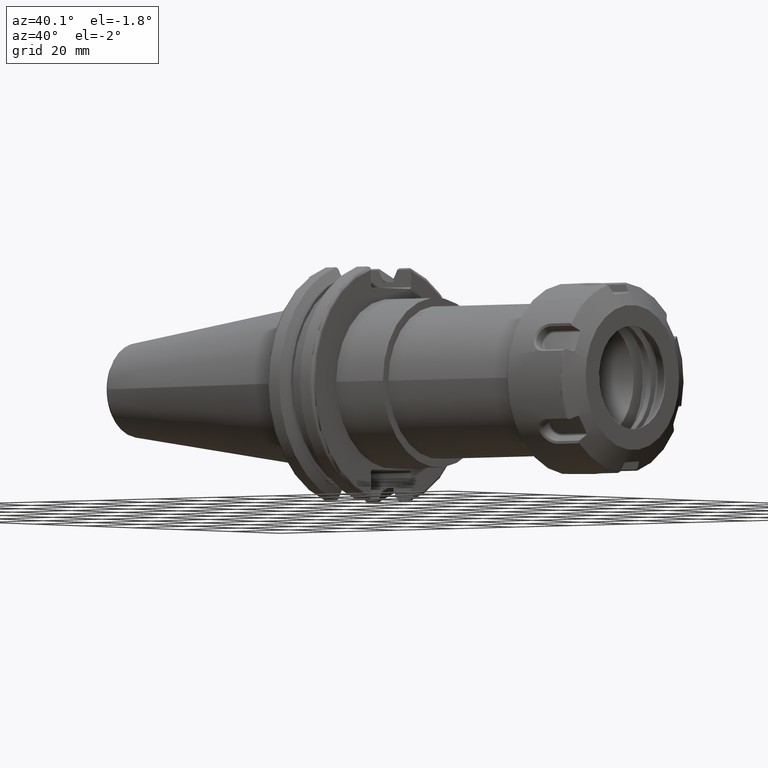
[diagram: clean part render]
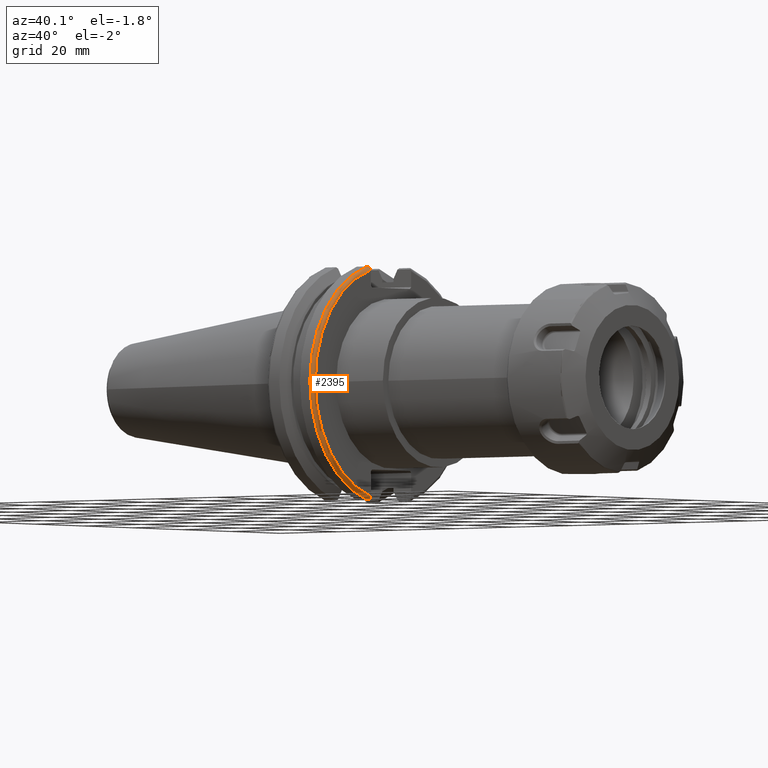
[diagram: same view with one face highlighted and labeled with its STEP entity id]
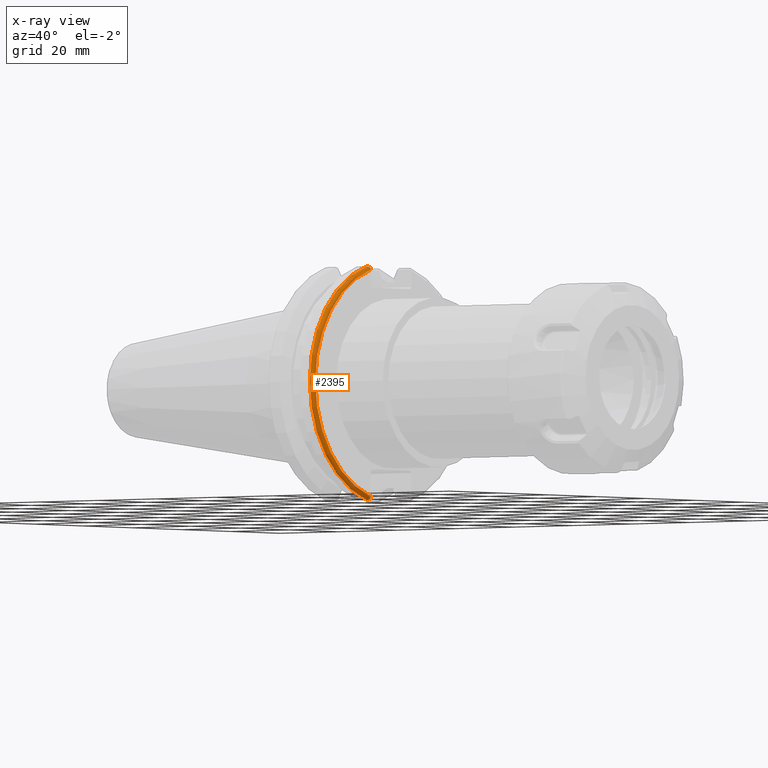
[diagram: x-ray of the same camera — body ghosted, the highlighted face saturated]
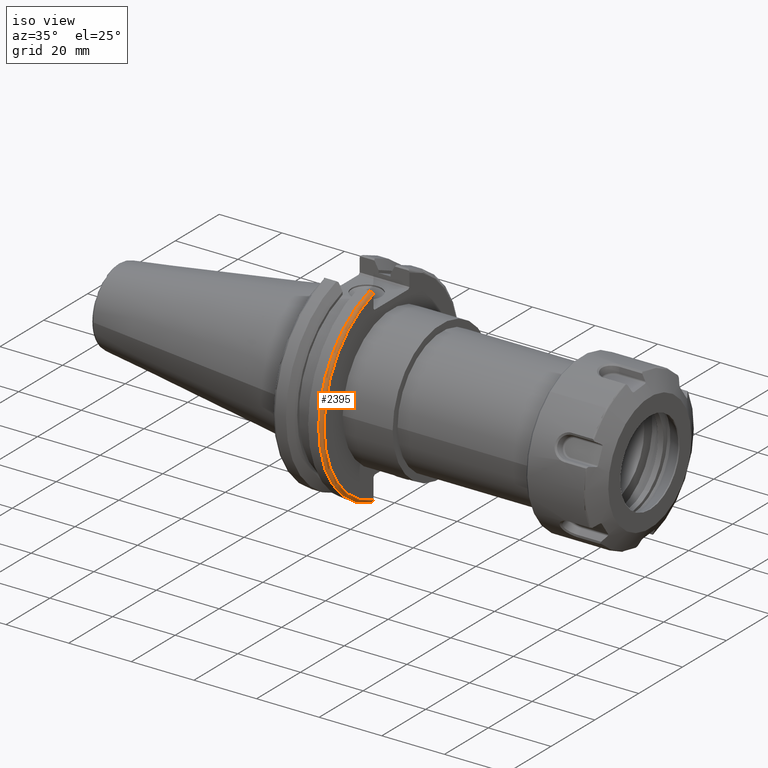
[diagram: same view with one face highlighted and labeled with its STEP entity id]
A machine part, auxiliary view. The second image highlights one B-rep face of the part: STEP entity #2395.
The next image is the same camera in x-ray: the body ghosted, the highlighted face saturated — about 0% of this face is hidden behind the body in this view.
A second angle (iso view) of the same face is appended — the face is thin or edge-on in the first view.
In plain terms, the highlighted toroidal blend (fillet) surface has major radius 30.75 mm and minor (blend) radius 1 mm.
Its self-contained STEP definition (entity closure, byte-faithful):
#144=B_SPLINE_CURVE_WITH_KNOTS('',3,(#3662,#3663,#3664,#3665,#3666,#3667),
 .UNSPECIFIED.,.F.,.F.,(4,2,4),(0.0977383630915687,0.112311108149119,0.150804350305566),
 .UNSPECIFIED.);
#145=B_SPLINE_CURVE_WITH_KNOTS('',3,(#3669,#3670,#3671,#3672,#3673,#3674),
 .UNSPECIFIED.,.F.,.F.,(4,2,4),(0.452741154494497,0.491581665024872,0.505824174364157),
 .UNSPECIFIED.);
#146=B_SPLINE_CURVE_WITH_KNOTS('',3,(#3676,#3677,#3678,#3679,#3680,#3681,
#3682,#3683),.UNSPECIFIED.,.F.,.F.,(4,2,2,4),(-0.104180282751876,-0.072978474246144,
-0.0343524753874979,0.),.UNSPECIFIED.);
#147=B_SPLINE_CURVE_WITH_KNOTS('',3,(#3686,#3687,#3688,#3689,#3690,#3691,
#3692,#3693),.UNSPECIFIED.,.F.,.F.,(4,2,2,4),(0.,0.0343524753874979,0.0729784742461441,
0.104180282751877),.UNSPECIFIED.);
#217=TOROIDAL_SURFACE('',#2635,30.75,1.);
#362=FACE_OUTER_BOUND('',#510,.T.);
#510=EDGE_LOOP('',(#1737,#1738,#1739,#1740,#1741,#1742));
#974=CIRCLE('',#2634,30.75);
#975=CIRCLE('',#2636,31.75);
#1105=VERTEX_POINT('',#3649);
#1106=VERTEX_POINT('',#3651);
#1110=VERTEX_POINT('',#3661);
#1111=VERTEX_POINT('',#3668);
#1112=VERTEX_POINT('',#3675);
#1113=VERTEX_POINT('',#3684);
#1346=EDGE_CURVE('',#1106,#1105,#974,.T.);
#1351=EDGE_CURVE('',#1110,#1106,#144,.T.);
#1352=EDGE_CURVE('',#1105,#1111,#145,.T.);
#1353=EDGE_CURVE('',#1111,#1112,#146,.T.);
#1354=EDGE_CURVE('',#1112,#1113,#975,.T.);
#1355=EDGE_CURVE('',#1113,#1110,#147,.T.);
#1737=ORIENTED_EDGE('',*,*,#1351,.T.);
#1738=ORIENTED_EDGE('',*,*,#1346,.T.);
#1739=ORIENTED_EDGE('',*,*,#1352,.T.);
#1740=ORIENTED_EDGE('',*,*,#1353,.T.);
#1741=ORIENTED_EDGE('',*,*,#1354,.T.);
#1742=ORIENTED_EDGE('',*,*,#1355,.T.);
#2395=ADVANCED_FACE('',(#362),#217,.T.);
#2634=AXIS2_PLACEMENT_3D('',#3652,#2952,#2953);
#2635=AXIS2_PLACEMENT_3D('',#3660,#2958,#2959);
#2636=AXIS2_PLACEMENT_3D('',#3685,#2960,#2961);
#2952=DIRECTION('center_axis',(-1.,0.,0.));
#2953=DIRECTION('ref_axis',(0.,-1.,1.60812264967664E-16));
#2958=DIRECTION('center_axis',(1.,0.,0.));
#2959=DIRECTION('ref_axis',(0.,0.,-1.));
#2960=DIRECTION('center_axis',(1.,0.,0.));
#2961=DIRECTION('ref_axis',(0.,-1.,1.60812264967664E-16));
#3649=CARTESIAN_POINT('',(19.05,-8.19,29.6392712461019));
#3651=CARTESIAN_POINT('',(19.05,-8.19,-29.6392712461019));
#3652=CARTESIAN_POINT('Origin',(19.05,0.,0.));
#3660=CARTESIAN_POINT('Origin',(18.05,0.,0.));
#3661=CARTESIAN_POINT('',(18.9058722749097,-8.19,-30.1755016258903));
#3662=CARTESIAN_POINT('Ctrl Pts',(18.9058722749097,-8.19,-30.1755016258903));
#3663=CARTESIAN_POINT('Ctrl Pts',(18.9324477233044,-8.19,-30.1299319366157));
#3664=CARTESIAN_POINT('Ctrl Pts',(18.9550700364447,-8.19,-30.0829389905409));
#3665=CARTESIAN_POINT('Ctrl Pts',(19.0210043632013,-8.19,-29.9188002007263));
#3666=CARTESIAN_POINT('Ctrl Pts',(19.05,-8.19,-29.76758205329));
#3667=CARTESIAN_POINT('Ctrl Pts',(19.05,-8.19,-29.6392712461019));
#3668=CARTESIAN_POINT('',(18.9058722749097,-8.19,30.1755016258903));
#3669=CARTESIAN_POINT('Ctrl Pts',(19.05,-8.19,29.6392712461019));
#3670=CARTESIAN_POINT('Ctrl Pts',(19.05,-8.19,29.7687396145364));
#3671=CARTESIAN_POINT('Ctrl Pts',(19.0204855670831,-8.19,29.9212724384851));
#3672=CARTESIAN_POINT('Ctrl Pts',(18.9539643471756,-8.19,30.0852355256475));
#3673=CARTESIAN_POINT('Ctrl Pts',(18.9318163728133,-8.19,30.131014531546));
#3674=CARTESIAN_POINT('Ctrl Pts',(18.9058722749097,-8.19,30.1755016258903));
#3675=CARTESIAN_POINT('',(18.05,-8.67204822802685,30.5427254764662));
#3676=CARTESIAN_POINT('Ctrl Pts',(18.9058722749097,-8.19,30.1755016258903));
#3677=CARTESIAN_POINT('Ctrl Pts',(18.8574463042989,-8.2703682833078,30.2367261024977));
#3678=CARTESIAN_POINT('Ctrl Pts',(18.7926702662319,-8.34909446036477,30.2966996242308));
#3679=CARTESIAN_POINT('Ctrl Pts',(18.6396724190507,-8.48862804755883,30.4029961692546));
#3680=CARTESIAN_POINT('Ctrl Pts',(18.5184414294771,-8.56482138642532,30.4610401774263));
#3681=CARTESIAN_POINT('Ctrl Pts',(18.2983170433775,-8.6471881193939,30.5237870709558));
#3682=CARTESIAN_POINT('Ctrl Pts',(18.1645082512917,-8.67204822802685,30.5427254764662));
#3683=CARTESIAN_POINT('Ctrl Pts',(18.05,-8.67204822802685,30.5427254764662));
#3684=CARTESIAN_POINT('',(18.05,-8.67204822802685,-30.5427254764662));
#3685=CARTESIAN_POINT('Origin',(18.05,0.,0.));
#3686=CARTESIAN_POINT('Ctrl Pts',(18.05,-8.67204822802686,-30.5427254764662));
#3687=CARTESIAN_POINT('Ctrl Pts',(18.1645082512917,-8.67204822802686,-30.5427254764662));
#3688=CARTESIAN_POINT('Ctrl Pts',(18.2983170433775,-8.6471881193939,-30.5237870709558));
#3689=CARTESIAN_POINT('Ctrl Pts',(18.5184414294771,-8.56482138642532,-30.4610401774263));
#3690=CARTESIAN_POINT('Ctrl Pts',(18.6396724190507,-8.48862804755884,-30.4029961692546));
#3691=CARTESIAN_POINT('Ctrl Pts',(18.7926702662319,-8.34909446036477,-30.2966996242308));
#3692=CARTESIAN_POINT('Ctrl Pts',(18.8574463042989,-8.27036828330781,-30.2367261024977));
#3693=CARTESIAN_POINT('Ctrl Pts',(18.9058722749097,-8.19,-30.1755016258903));